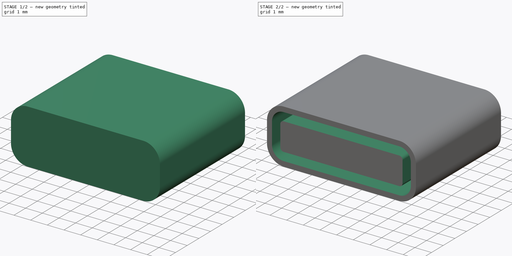
[diagram: build sequence overview — one tinted view per stage of 2, left to right]
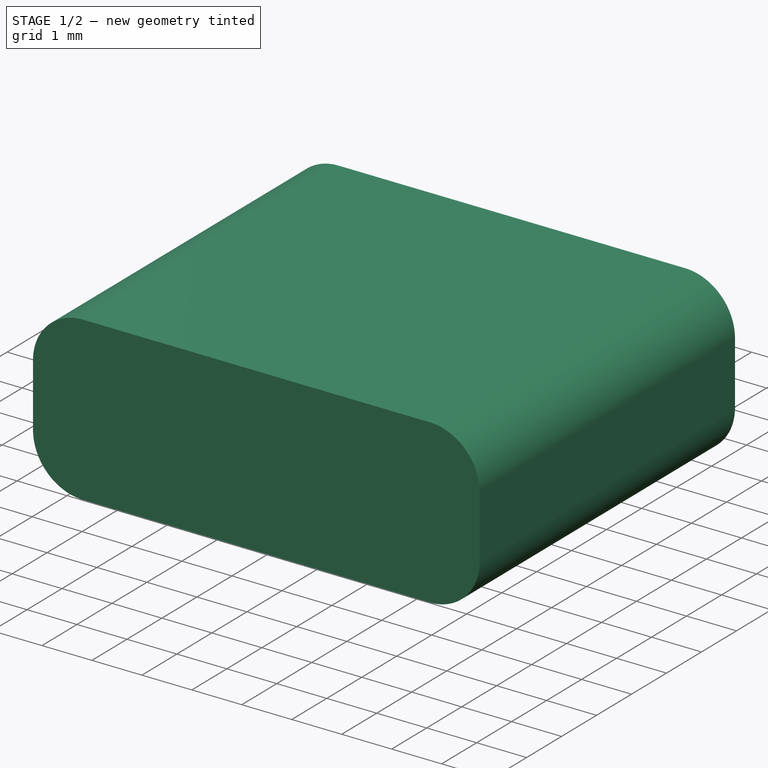
[diagram: stage 1 of 2 — iso view after this stage's code; geometry added in this stage tinted green]
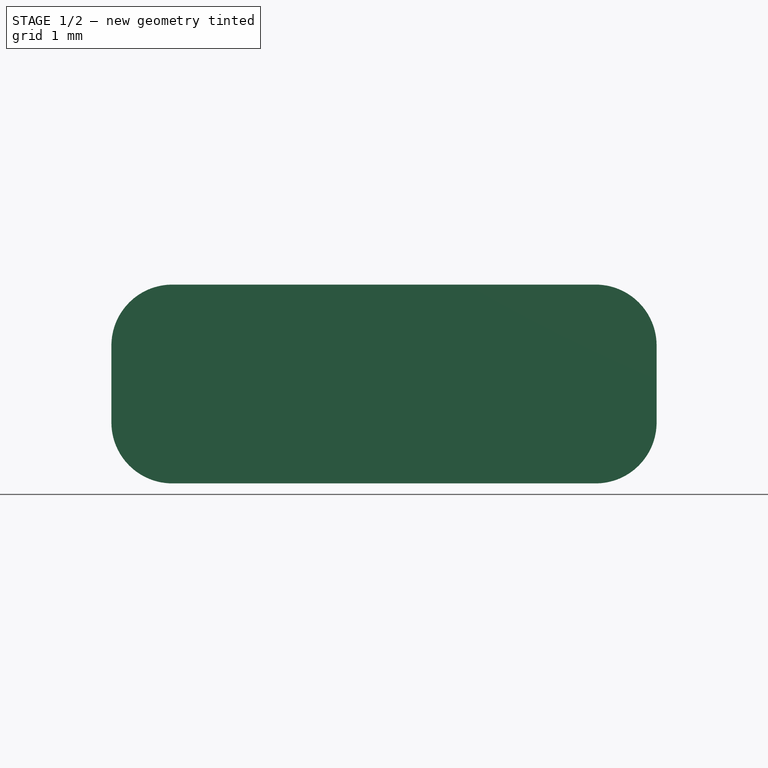
[diagram: stage 1 of 2 — front view after this stage's code; geometry added in this stage tinted green]
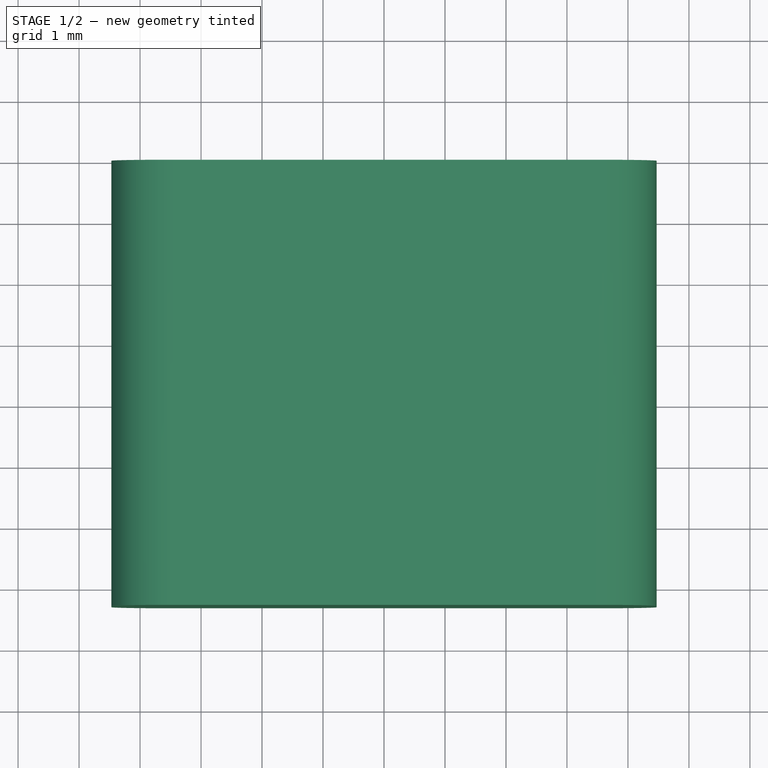
[diagram: stage 1 of 2 — top view after this stage's code; geometry added in this stage tinted green]
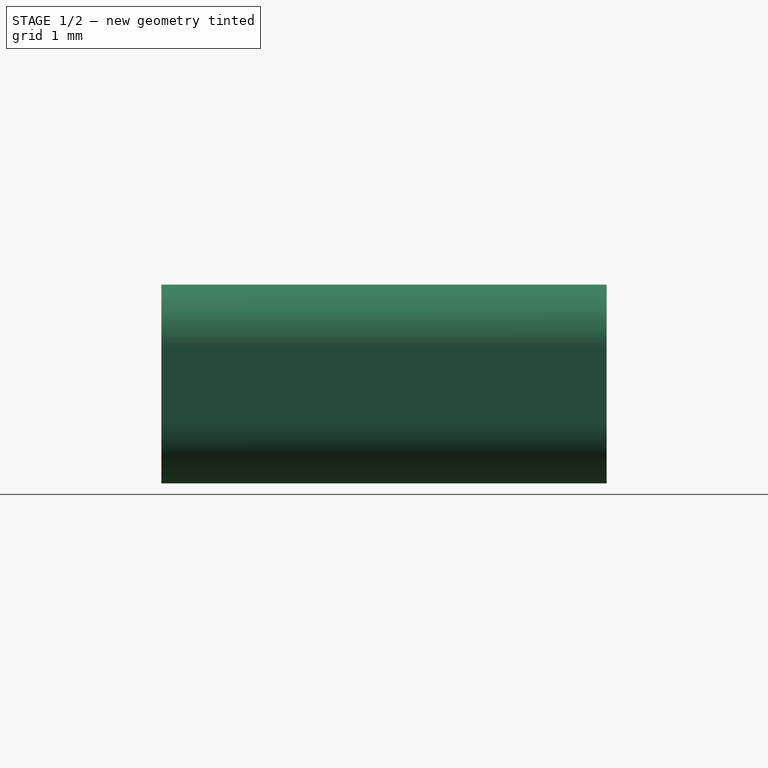
[diagram: stage 1 of 2 — right view after this stage's code; geometry added in this stage tinted green]
FCSTD DOCUMENT  (FreeCAD 0.19R22756 (Git))
Label: U262-161N-4BVC11
License: Creative Commons CC-BY-SA 4.0 License
objects: Sketcher::SketchObject×2, PartDesign::Pad×1, PartDesign::Pocket×1
note: 6 computed .brp shape members not serialized (recipe doc carries the construction recipe); baked Part::Feature solids carry a one-line shape summary decoded from their .brp

FEATURE [Sketcher::SketchObject] Sketch
  MapMode = 5
  Placement = pos=(0,0,0) rot=(1,0,0;1.5708rad)
  sketch-geometry (16):
    g0: ArcOfCircle CenterX=-3.47 CenterY=2.26 CenterZ=0 NormalX=0 NormalY=0 NormalZ=1 AngleXU=0 Radius=1 StartAngle=1.5708 EndAngle=3.14159
    g1: LineSegment StartX=-4.47 StartY=2.26 StartZ=0 EndX=-4.47 EndY=1 EndZ=0
    g2: ArcOfCircle CenterX=3.47 CenterY=1 CenterZ=0 NormalX=0 NormalY=0 NormalZ=1 AngleXU=0 Radius=1 StartAngle=4.71239 EndAngle=6.28319
    g3: ArcOfCircle CenterX=3.47 CenterY=2.26 CenterZ=0 NormalX=0 NormalY=0 NormalZ=1 AngleXU=0 Radius=1 StartAngle=0 EndAngle=1.5708
    g4: LineSegment StartX=-3.47 StartY=3.26 StartZ=0 EndX=3.47 EndY=3.26 EndZ=0
    g5: LineSegment StartX=4.47 StartY=2.26 StartZ=0 EndX=4.47 EndY=1 EndZ=0
    g6: LineSegment StartX=3.47 StartY=0 StartZ=0 EndX=-3.47 EndY=0 EndZ=0
    g7: ArcOfCircle CenterX=-3.47 CenterY=1 CenterZ=0 NormalX=0 NormalY=0 NormalZ=1 AngleXU=0 Radius=1 StartAngle=3.14159 EndAngle=4.71239
    g8: LineSegment [constr] StartX=-4.47 StartY=2.26 StartZ=0 EndX=-3.47 EndY=2.26 EndZ=0
    g9: LineSegment [constr] StartX=-3.47 StartY=2.26 StartZ=0 EndX=-3.47 EndY=3.26 EndZ=0
    g10: LineSegment [constr] StartX=3.47 StartY=3.26 StartZ=0 EndX=3.47 EndY=2.26 EndZ=0
    g11: LineSegment [constr] StartX=3.47 StartY=2.26 StartZ=0 EndX=4.47 EndY=2.26 EndZ=0
    g12: LineSegment [constr] StartX=3.47 StartY=1 StartZ=0 EndX=4.47 EndY=1 EndZ=0
    g13: LineSegment [constr] StartX=3.47 StartY=0 StartZ=0 EndX=3.47 EndY=1 EndZ=0
    g14: LineSegment [constr] StartX=-3.47 StartY=1 StartZ=0 EndX=-3.47 EndY=0 EndZ=0
    g15: LineSegment [constr] StartX=-4.47 StartY=1 StartZ=0 EndX=-3.47 EndY=1 EndZ=0
  constraints (43):
    c: Coincident(g1,g0)
    c: Coincident(g4,g0)
    c: Coincident(g4,g3)
    c: Coincident(g5,g3)
    c: Coincident(g5,g2)
    c: Coincident(g6,g2)
    c: Coincident(g7,g6)
    c: Coincident(g7,g1)
    c: Coincident(g8,g0)
    c: Coincident(g8,g0)
    c: Coincident(g9,g0)
    c: Coincident(g9,g0)
    c: Coincident(g10,g3)
    c: Coincident(g10,g3)
    c: Vertical(g10)
    c: Coincident(g11,g3)
    c: Coincident(g11,g3)
    c: Horizontal(g11)
    c: Coincident(g12,g2)
    c: Coincident(g12,g2)
    c: Coincident(g13,g2)
    c: Coincident(g13,g2)
    c: Coincident(g14,g7)
    c: Coincident(g14,g6)
    c: Coincident(g15,g1)
    c: Coincident(g15,g7)
    c: Symmetric(g6,g2,g-1)
    c: Vertical(g9)
    c: Vertical(g14)
    c: Vertical(g13)
    c: Horizontal(g6)
    c: Horizontal(g12)
    c: Horizontal(g15)
    c: Horizontal(g8)
    c: Vertical(g5)
    c: Vertical(g1)
    c: Horizontal(g4)
    c: DistanceY(g14,g14) = 1
    c: Horizontal(g2,g7)
    c: Vertical(g7,g0)
    c: Vertical(g2,g3)
    c: DistanceY(g6,g0) = 3.26
    c: DistanceX(g0,g3) = 8.94
FEATURE [PartDesign::Pad] Pad
  Direction = (1,1,1)
  Length = 7.3
  Length2 = 99.9998
  Placement = pos=(0,0,0) rot=(1,0,0;1.5708rad)
  Profile = -> Sketch
  Type = 0
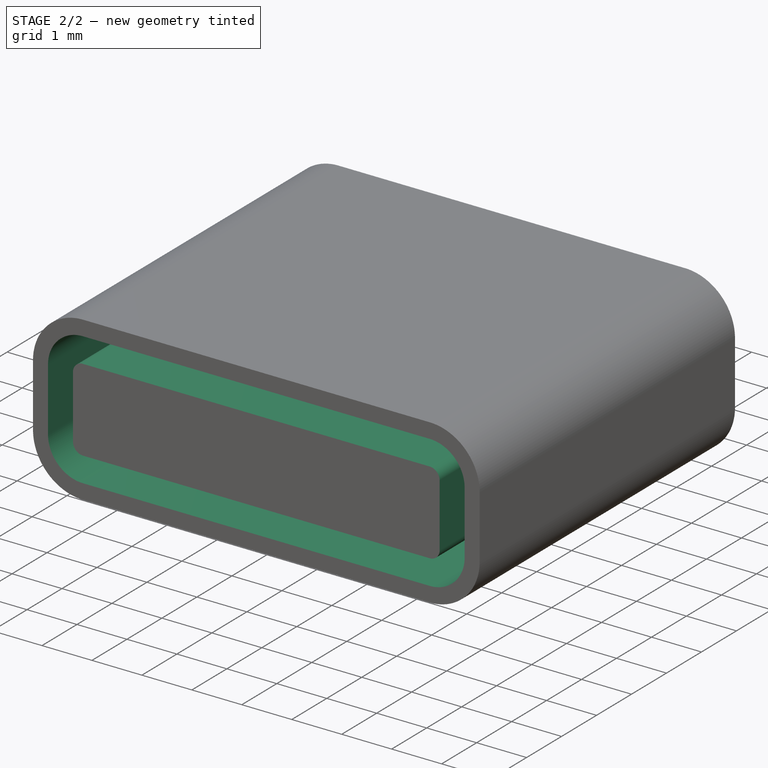
[diagram: stage 2 of 2 — iso view after this stage's code; geometry added in this stage tinted green]
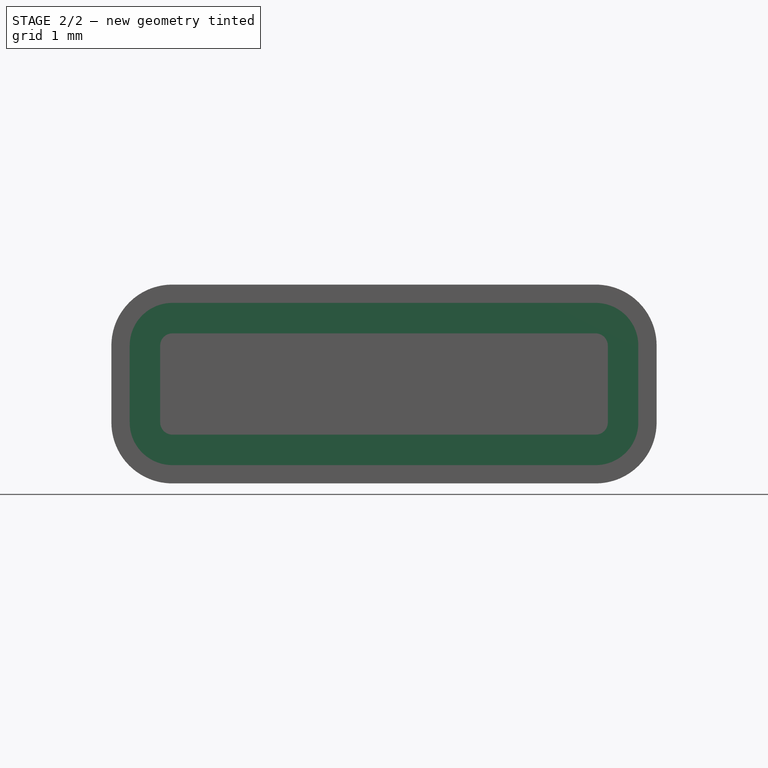
[diagram: stage 2 of 2 — front view after this stage's code; geometry added in this stage tinted green]
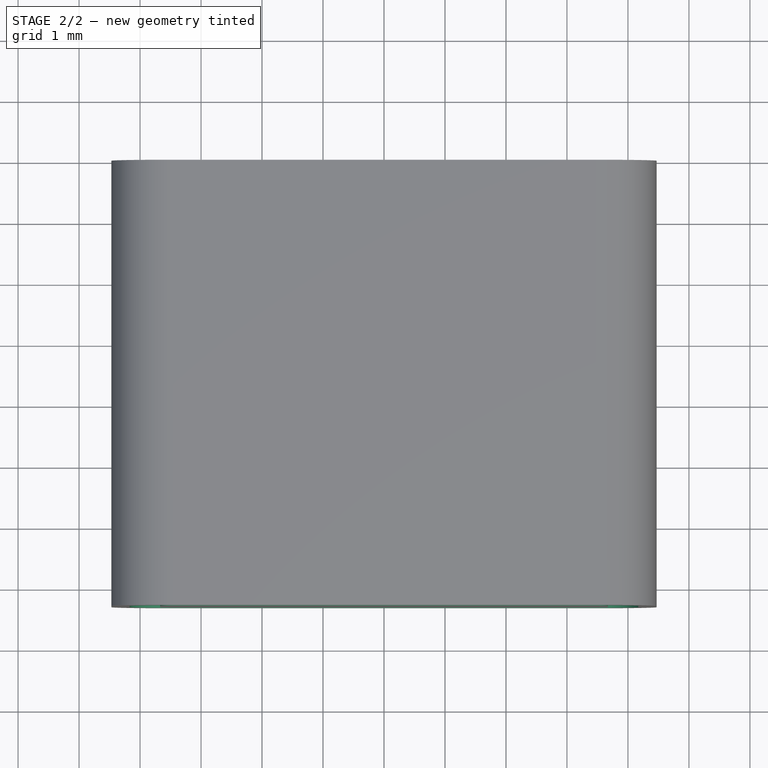
[diagram: stage 2 of 2 — top view after this stage's code; geometry added in this stage tinted green]
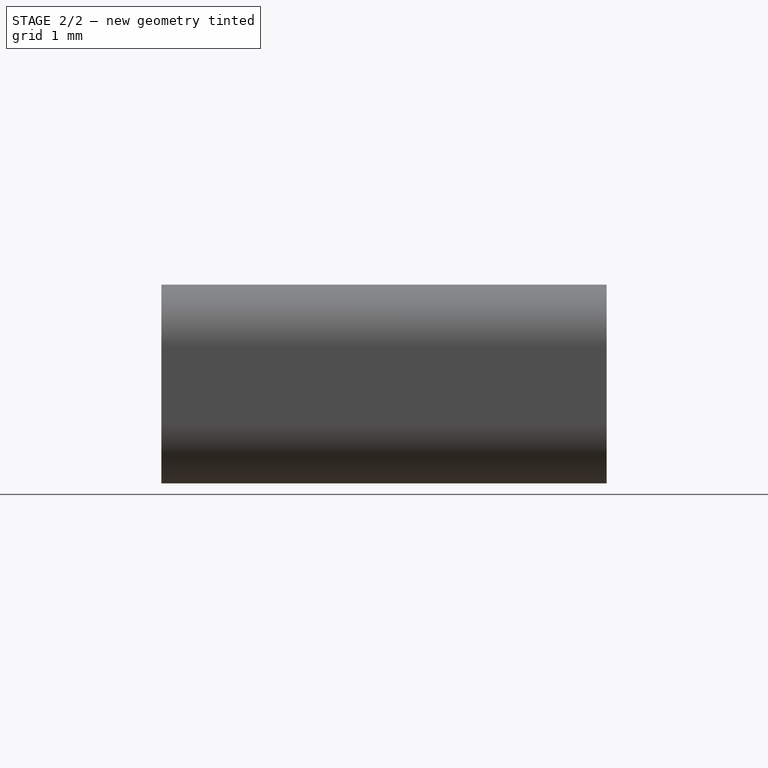
[diagram: stage 2 of 2 — right view after this stage's code; geometry added in this stage tinted green]
FEATURE [Sketcher::SketchObject] Sketch001
  ExternalGeometry = -> [Pad]
  MapMode = 5
  Placement = pos=(0,-7.3,-1.6e-15) rot=(1,0,0;1.5708rad)
  Support = -> [Pad]
  sketch-geometry (24):
    g0: ArcOfCircle CenterX=-3.47 CenterY=2.26 CenterZ=0 NormalX=0 NormalY=0 NormalZ=1 AngleXU=0 Radius=0.7 StartAngle=1.5708 EndAngle=3.14159
    g1: ArcOfCircle CenterX=-3.47 CenterY=1 CenterZ=0 NormalX=0 NormalY=0 NormalZ=1 AngleXU=0 Radius=0.7 StartAngle=3.14159 EndAngle=4.71239
    g2: ArcOfCircle CenterX=3.47 CenterY=1 CenterZ=0 NormalX=0 NormalY=0 NormalZ=1 AngleXU=0 Radius=0.7 StartAngle=4.71239 EndAngle=6.28319
    g3: ArcOfCircle CenterX=3.47 CenterY=2.26 CenterZ=0 NormalX=0 NormalY=0 NormalZ=1 AngleXU=0 Radius=0.7 StartAngle=0 EndAngle=1.5708
    g4: LineSegment StartX=-3.47 StartY=2.96 StartZ=0 EndX=3.47 EndY=2.96 EndZ=0
    g5: LineSegment StartX=-4.17 StartY=2.26 StartZ=0 EndX=-4.17 EndY=1 EndZ=0
    g6: LineSegment StartX=-3.47 StartY=0.3 StartZ=0 EndX=3.47 EndY=0.3 EndZ=0
    g7: LineSegment StartX=4.17 StartY=1 StartZ=0 EndX=4.17 EndY=2.26 EndZ=0
    g8: LineSegment [constr] StartX=3.47 StartY=1 StartZ=0 EndX=3.47 EndY=0.3 EndZ=0
    g9: LineSegment [constr] StartX=3.47 StartY=1 StartZ=0 EndX=4.17 EndY=1 EndZ=0
    g10: LineSegment [constr] StartX=-3.47 StartY=0.3 StartZ=0 EndX=-3.47 EndY=1 EndZ=0
    g11: LineSegment [constr] StartX=-4.17 StartY=2.26 StartZ=0 EndX=-3.47 EndY=2.26 EndZ=0
    g12: LineSegment [constr] StartX=-4.47 StartY=1.55747 StartZ=0 EndX=-4.17 EndY=1.55747 EndZ=0
    g13: LineSegment [constr] StartX=-0.870458 StartY=2.96 StartZ=0 EndX=-0.870458 EndY=3.26 EndZ=0
    g14: LineSegment [constr] StartX=-1.06166 StartY=0.3 StartZ=0 EndX=-1.06166 EndY=1e-16 EndZ=0
    g15: LineSegment [constr] StartX=4.17 StartY=1.5289 StartZ=0 EndX=4.47 EndY=1.5289 EndZ=0
    g16: ArcOfCircle CenterX=-3.47 CenterY=2.26 CenterZ=0 NormalX=0 NormalY=0 NormalZ=1 AngleXU=0 Radius=0.2 StartAngle=1.5708 EndAngle=3.14159
    g17: LineSegment StartX=-3.67 StartY=2.26 StartZ=0 EndX=-3.67 EndY=1 EndZ=0
    g18: ArcOfCircle CenterX=-3.47 CenterY=1 CenterZ=0 NormalX=0 NormalY=0 NormalZ=1 AngleXU=0 Radius=0.2 StartAngle=3.14159 EndAngle=4.71239
    g19: LineSegment StartX=-3.47 StartY=0.8 StartZ=0 EndX=3.47 EndY=0.8 EndZ=0
    g20: ArcOfCircle CenterX=3.47 CenterY=1 CenterZ=0 NormalX=0 NormalY=0 NormalZ=1 AngleXU=0 Radius=0.2 StartAngle=4.71239 EndAngle=6.29309
    g21: LineSegment StartX=3.66999 StartY=1.00198 StartZ=0 EndX=3.66999 EndY=2.26198 EndZ=0
    g22: ArcOfCircle CenterX=3.47 CenterY=2.26 CenterZ=0 NormalX=0 NormalY=0 NormalZ=1 AngleXU=0 Radius=0.2 StartAngle=0.00990894 EndAngle=1.5708
    g23: LineSegment StartX=-3.47 StartY=2.46 StartZ=0 EndX=3.47 EndY=2.46 EndZ=0
  constraints (72):
    c: Coincident(g4,g0)
    c: Coincident(g4,g3)
    c: Horizontal(g4)
    c: Coincident(g5,g0)
    c: Coincident(g5,g1)
    c: Coincident(g6,g1)
    c: Coincident(g6,g2)
    c: Coincident(g7,g2)
    c: Coincident(g7,g3)
    c: Vertical(g7)
    c: Horizontal(g6)
    c: Vertical(g5)
    c: Coincident(g8,g2)
    c: Coincident(g8,g2)
    c: Coincident(g9,g2)
    c: Coincident(g9,g2)
    c: Vertical(g8)
    c: Horizontal(g9)
    c: Vertical(g2,g3)
    c: Vertical(g3,g3)
    c: Horizontal(g2,g1)
    c: Horizontal(g1,g1)
    c: Coincident(g10,g1)
    c: Coincident(g10,g1)
    c: Vertical(g10)
    c: Vertical(g1,g0)
    c: Vertical(g0,g0)
    c: Coincident(g11,g0)
    c: Coincident(g11,g0)
    c: Horizontal(g11)
    c: PointOnObject(g12,g-4)
    c: PointOnObject(g12,g5)
    c: Horizontal(g12)
    c: PointOnObject(g13,g4)
    c: PointOnObject(g13,g-3)
    c: Vertical(g13)
    c: PointOnObject(g14,g6)
    c: PointOnObject(g14,g-6)
    c: Vertical(g14)
    c: PointOnObject(g15,g7)
    c: PointOnObject(g15,g-5)
    c: Horizontal(g15)
    c: DistanceX(g12,g12) = 0.3
    c: DistanceX(g15,g15) = 0.3
    c: DistanceY(g13,g13) = 0.3
    c: DistanceY(g14,g14) = 0.3
    c: DistanceY(g10,g10) = 0.7
    c: Coincident(g23,g16)
    c: Coincident(g23,g22)
    c: Horizontal(g23)
    c: Coincident(g17,g16)
    c: Coincident(g17,g18)
    c: Coincident(g19,g18)
    c: Coincident(g19,g20)
    c: Coincident(g21,g20)
    c: Coincident(g21,g22)
    c: Vertical(g21)
    c: Horizontal(g19)
    c: Vertical(g17)
    c: Vertical(g20,g22)
    c: Vertical(g22,g22)
    c: Horizontal(g20,g18)
    c: Horizontal(g18,g18)
    c: Vertical(g18,g16)
    c: Vertical(g16,g16)
    c: Coincident(g16,g0)
    c: Coincident(g22,g3)
    c: DistanceY(g0,g16) = 0.2
    c: Vertical(g18,g18)
    c: Horizontal(g17,g1)
    c: Horizontal(g3,g3)
    c: Vertical(g19,g2)
FEATURE [PartDesign::Pocket] Pocket
  BaseFeature = -> Pad
  Length = 6
  Length2 = 99.9998
  Placement = pos=(0,0,0) rot=(1,0,0;1.5708rad)
  Profile = -> Sketch001
  Type = 0
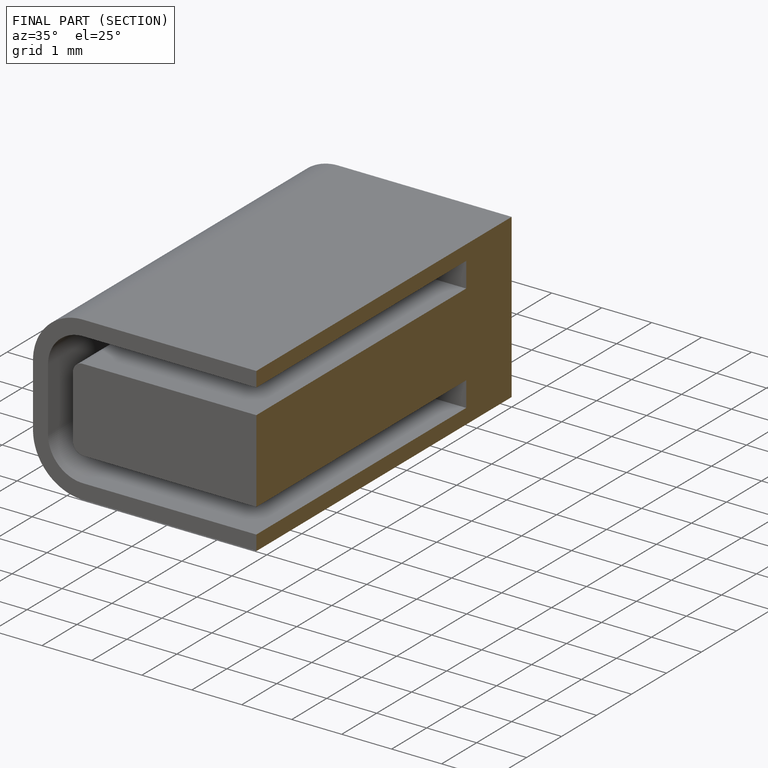
[diagram: finished part — half-section view (interior)]
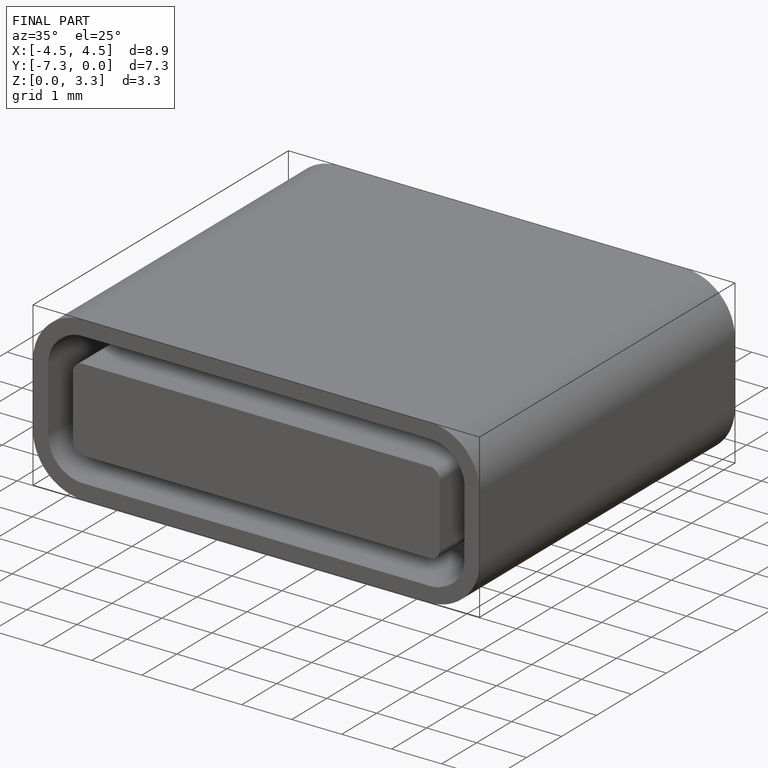
[diagram: finished part — iso view with bounding-box wireframe]
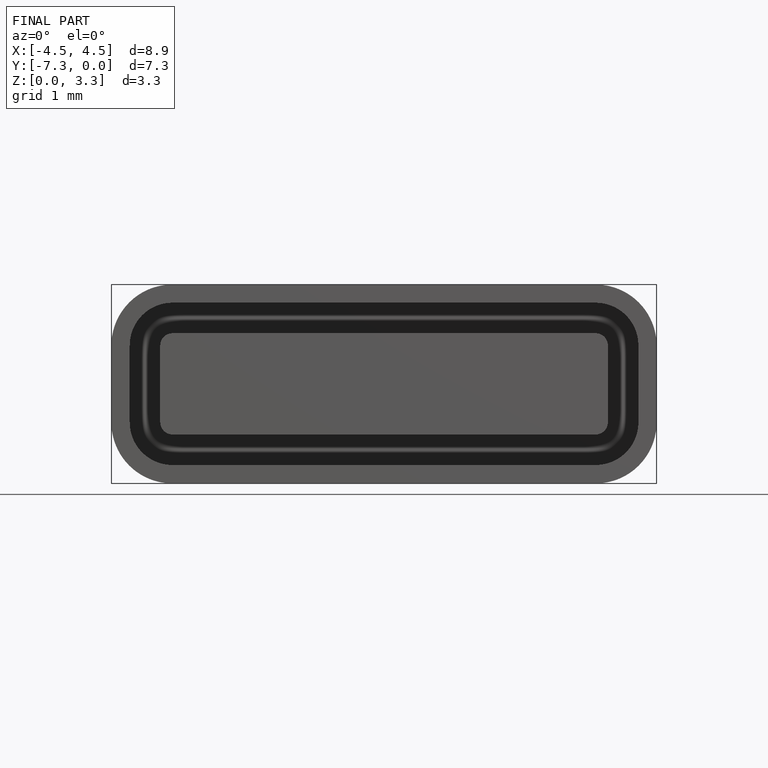
[diagram: finished part — front view with bounding-box wireframe]
